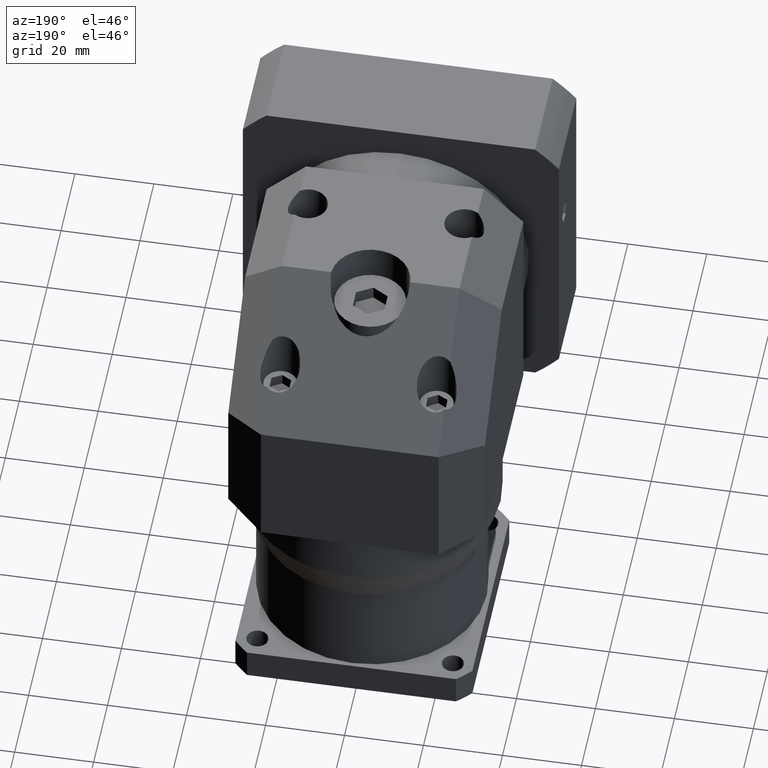
[diagram: clean part render]
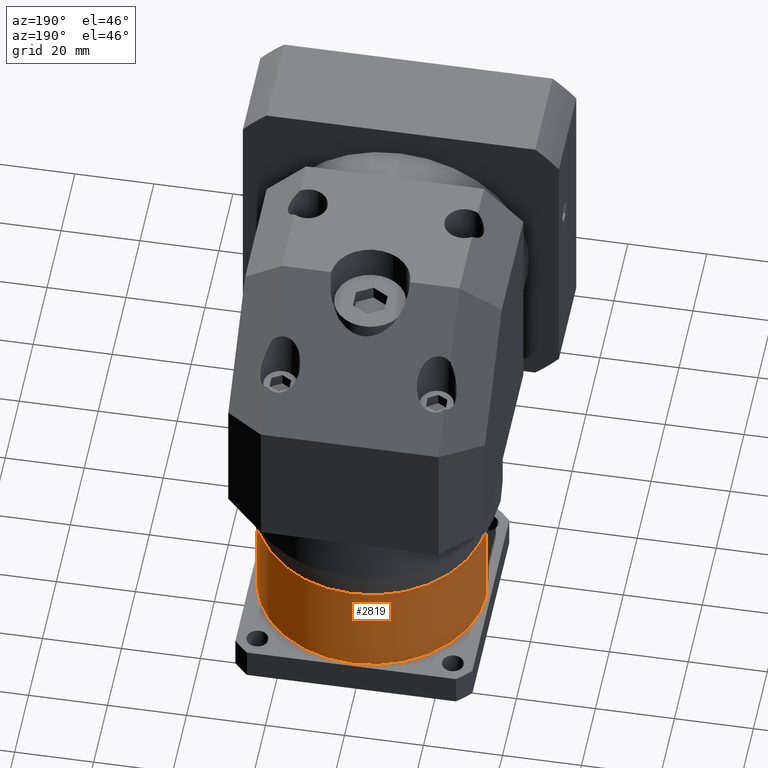
[diagram: same view with one face highlighted and labeled with its STEP entity id]
A machine part, auxiliary view. The second image highlights one B-rep face of the part: STEP entity #2819.
In plain terms, the highlighted cylindrical surface (partial cylindrical patch) has radius 29 mm, axis along (-0, -0, 1).
Its self-contained STEP definition (entity closure, byte-faithful):
#321 = DIRECTION ( 'NONE',  ( 0.0000000000000000000, 0.0000000000000000000, -1.000000000000000000 ) ) ;
#819 = DIRECTION ( 'NONE',  ( 0.0000000000000000000, 0.0000000000000000000, -1.000000000000000000 ) ) ;
#992 = VERTEX_POINT ( 'NONE', #3058 ) ;
#1164 = VERTEX_POINT ( 'NONE', #1920 ) ;
#1294 = AXIS2_PLACEMENT_3D ( 'NONE', #4274, #321, #4950 ) ;
#1403 = LINE ( 'NONE', #5911, #3169 ) ;
#1535 = LINE ( 'NONE', #2161, #6836 ) ;
#1920 = CARTESIAN_POINT ( 'NONE',  ( -29.00000000000000000, 3.551475717527324000E-015, -21.61617096809094100 ) ) ;
#1969 = DIRECTION ( 'NONE',  ( -0.0000000000000000000, -0.0000000000000000000, 1.000000000000000000 ) ) ;
#2114 = AXIS2_PLACEMENT_3D ( 'NONE', #3400, #3518, #3755 ) ;
#2161 = CARTESIAN_POINT ( 'NONE',  ( 29.00000000000000000, 0.0000000000000000000, -54.50000000000000000 ) ) ;
#2291 = AXIS2_PLACEMENT_3D ( 'NONE', #4791, #819, #5459 ) ;
#2704 = EDGE_CURVE ( 'NONE', #6463, #992, #1535, .T. ) ;
#2819 = ADVANCED_FACE ( 'NONE', ( #5767 ), #5162, .T. ) ;
#3058 = CARTESIAN_POINT ( 'NONE',  ( 29.00000000000000000, 0.0000000000000000000, -21.61617096809094100 ) ) ;
#3169 = VECTOR ( 'NONE', #1969, 1000.000000000000000 ) ;
#3400 = CARTESIAN_POINT ( 'NONE',  ( 0.0000000000000000000, 0.0000000000000000000, -54.50000000000000000 ) ) ;
#3518 = DIRECTION ( 'NONE',  ( -0.0000000000000000000, -0.0000000000000000000, 1.000000000000000000 ) ) ;
#3546 = ORIENTED_EDGE ( 'NONE', *, *, #2704, .F. ) ;
#3755 = DIRECTION ( 'NONE',  ( 1.000000000000000000, 0.0000000000000000000, 0.0000000000000000000 ) ) ;
#3756 = VERTEX_POINT ( 'NONE', #3796 ) ;
#3796 = CARTESIAN_POINT ( 'NONE',  ( -29.00000000000000000, 3.551475717527324000E-015, -46.50000000000000000 ) ) ;
#3814 = ORIENTED_EDGE ( 'NONE', *, *, #6920, .T. ) ;
#4233 = ORIENTED_EDGE ( 'NONE', *, *, #8559, .T. ) ;
#4274 = CARTESIAN_POINT ( 'NONE',  ( 0.0000000000000000000, 0.0000000000000000000, -21.61617096809094100 ) ) ;
#4791 = CARTESIAN_POINT ( 'NONE',  ( 0.0000000000000000000, 0.0000000000000000000, -46.50000000000000000 ) ) ;
#4950 = DIRECTION ( 'NONE',  ( 1.000000000000000000, 0.0000000000000000000, 0.0000000000000000000 ) ) ;
#4965 = EDGE_LOOP ( 'NONE', ( #6084, #4233, #3814, #3546 ) ) ;
#5162 = CYLINDRICAL_SURFACE ( 'NONE', #2114, 29.00000000000000000 ) ;
#5459 = DIRECTION ( 'NONE',  ( -1.000000000000000000, 0.0000000000000000000, 0.0000000000000000000 ) ) ;
#5648 = CARTESIAN_POINT ( 'NONE',  ( 29.00000000000000000, 0.0000000000000000000, -46.50000000000000000 ) ) ;
#5767 = FACE_OUTER_BOUND ( 'NONE', #4965, .T. ) ;
#5773 = CIRCLE ( 'NONE', #2291, 29.00000000000000000 ) ;
#5812 = DIRECTION ( 'NONE',  ( -0.0000000000000000000, -0.0000000000000000000, 1.000000000000000000 ) ) ;
#5911 = CARTESIAN_POINT ( 'NONE',  ( -29.00000000000000000, 3.551475717527324000E-015, -54.50000000000000000 ) ) ;
#6053 = CIRCLE ( 'NONE', #1294, 29.00000000000000000 ) ;
#6084 = ORIENTED_EDGE ( 'NONE', *, *, #7255, .F. ) ;
#6463 = VERTEX_POINT ( 'NONE', #5648 ) ;
#6836 = VECTOR ( 'NONE', #5812, 1000.000000000000000 ) ;
#6920 = EDGE_CURVE ( 'NONE', #1164, #992, #6053, .T. ) ;
#7255 = EDGE_CURVE ( 'NONE', #3756, #6463, #5773, .T. ) ;
#8559 = EDGE_CURVE ( 'NONE', #3756, #1164, #1403, .T. ) ;